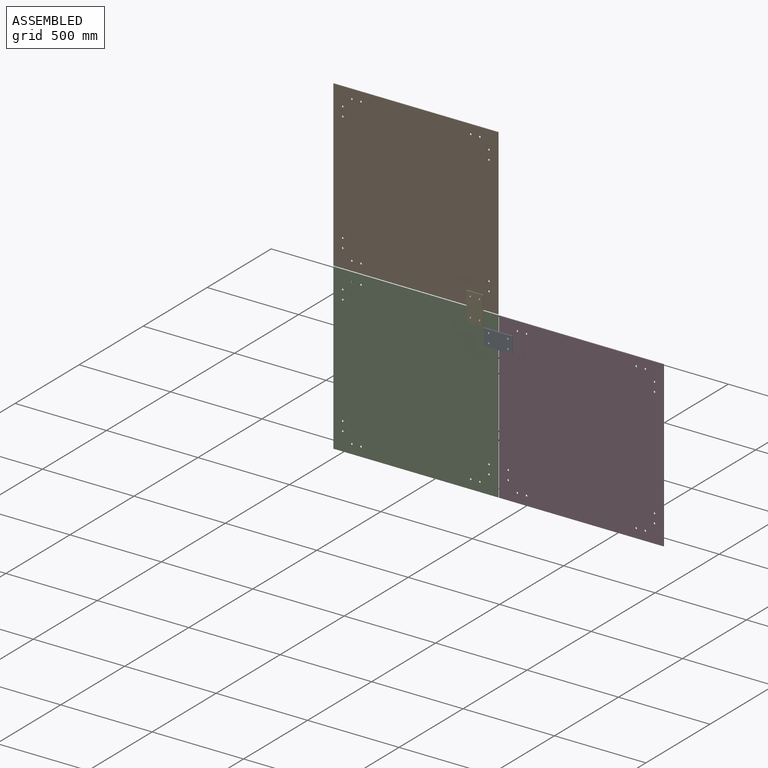
[diagram: assembled view]
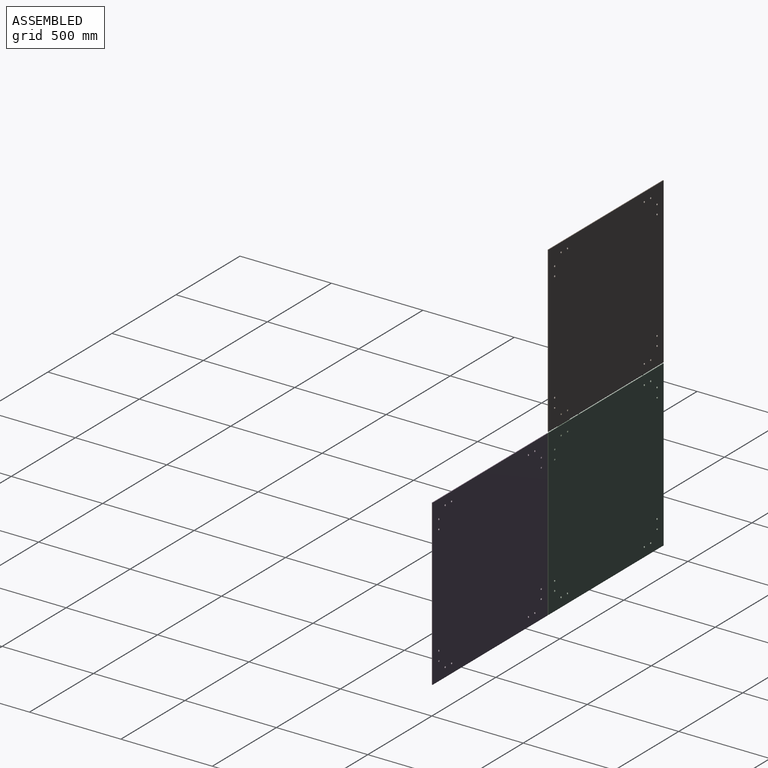
[diagram: assembled view, second angle]
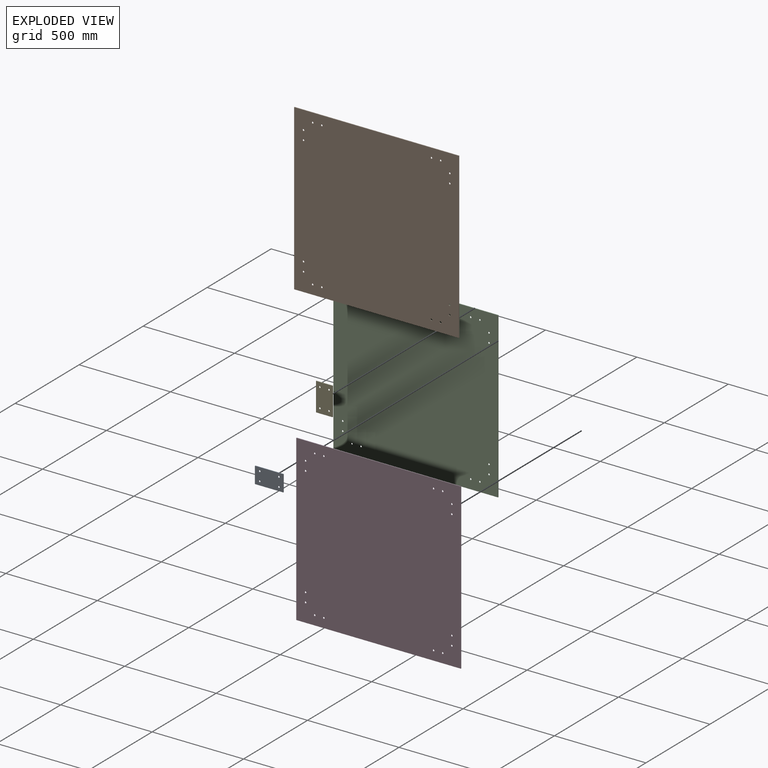
[diagram: exploded view]
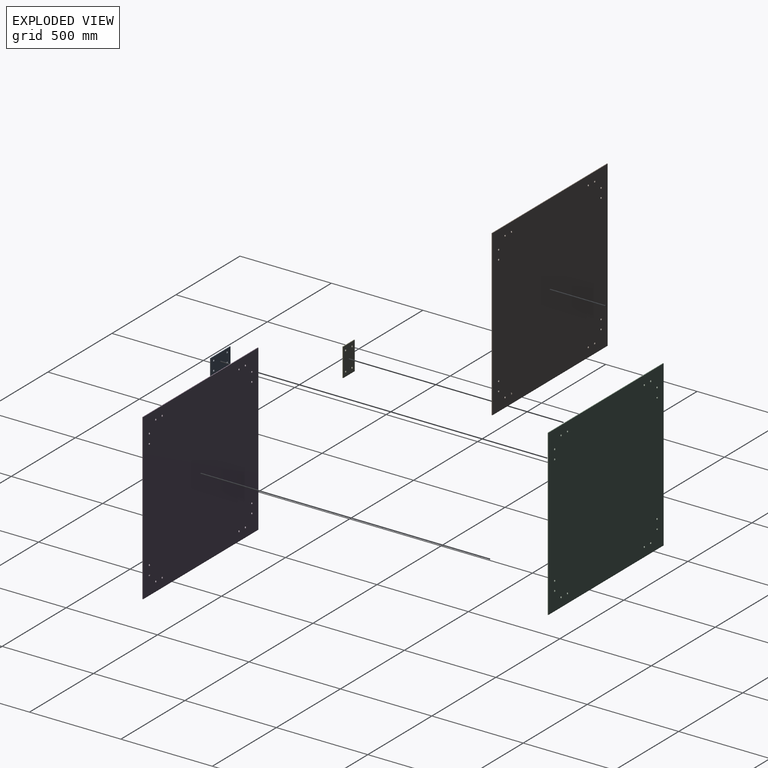
[diagram: exploded view, second angle]
ASSEMBLY  parts=5 mates=8
PART A: 10 faces, bbox 90x4x155 mm
  f0: plane 90x4mm, normal (0,0,-1), area 360mm2, adj f1,f7,f8,f9
  f1: plane 155x4mm, normal (1,0,0), area 620mm2, adj f0,f2,f8,f9
  f2: plane 90x4mm, normal (0,0,1), area 360mm2, adj f1,f7,f8,f9
  f3: cylinder r=5mm len=10mm, axis (0,1,0), area 125.7mm2, adj f8,f9
  f4: cylinder r=5mm len=10mm, axis (0,1,0), area 125.7mm2, adj f8,f9
  f5: cylinder r=5mm len=10mm, axis (0,1,0), area 125.7mm2, adj f8,f9
  f6: cylinder r=5mm len=10mm, axis (0,1,0), area 125.7mm2, adj f8,f9
  f7: plane 155x4mm, normal (-1,0,0), area 620mm2, adj f0,f2,f8,f9
  f8: plane 155x90mm, normal (0,-1,0), area 13635.8mm2, adj f0,f1,f2,f3,f4,f5,f6,f7
  f9: plane 155x90mm, normal (0,1,0), area 13635.8mm2, adj f0,f1,f2,f3,f4,f5,f6,f7
PART B: 22 faces, bbox 900x4x900 mm
  f0: plane 900x4mm, normal (0,0,-1), area 3600mm2, adj f1,f19,f20,f21
  f1: plane 900x4mm, normal (1,0,0), area 3600mm2, adj f0,f2,f20,f21
  f2: plane 900x4mm, normal (0,0,1), area 3600mm2, adj f1,f19,f20,f21
  f3: cylinder r=5mm len=10mm, axis (0,1,0), area 125.7mm2, adj f20,f21
  f4: cylinder r=5mm len=10mm, axis (0,1,0), area 125.7mm2, adj f20,f21
  f5: cylinder r=5mm len=10mm, axis (0,1,0), area 125.7mm2, adj f20,f21
  f6: cylinder r=5mm len=10mm, axis (0,1,0), area 125.7mm2, adj f20,f21
  f7: cylinder r=5mm len=10mm, axis (0,1,0), area 125.7mm2, adj f20,f21
  f8: cylinder r=5mm len=10mm, axis (0,1,0), area 125.7mm2, adj f20,f21
  f9: cylinder r=5mm len=10mm, axis (0,1,0), area 125.7mm2, adj f20,f21
  f10: cylinder r=5mm len=10mm, axis (0,1,0), area 125.7mm2, adj f20,f21
  f11: cylinder r=5mm len=10mm, axis (0,1,0), area 125.7mm2, adj f20,f21
  f12: cylinder r=5mm len=10mm, axis (0,1,0), area 125.7mm2, adj f20,f21
  f13: cylinder r=5mm len=10mm, axis (0,1,0), area 125.7mm2, adj f20,f21
  f14: cylinder r=5mm len=10mm, axis (0,1,0), area 125.7mm2, adj f20,f21
  f15: cylinder r=5mm len=10mm, axis (0,1,0), area 125.7mm2, adj f20,f21
  f16: cylinder r=5mm len=10mm, axis (0,1,0), area 125.7mm2, adj f20,f21
  f17: cylinder r=5mm len=10mm, axis (0,1,0), area 125.7mm2, adj f20,f21
  f18: cylinder r=5mm len=10mm, axis (0,1,0), area 125.7mm2, adj f20,f21
  f19: plane 900x4mm, normal (-1,0,0), area 3600mm2, adj f0,f2,f20,f21
  f20: plane 900x900mm, normal (0,-1,0), area 808743.4mm2, adj f0,f1,f2,f3,f4,f5,f6,f7
  f21: plane 900x900mm, normal (0,1,0), area 808743.4mm2, adj f0,f1,f2,f3,f4,f5,f6,f7
PART C: same geometry as B
PART D: same geometry as B
PART E: same geometry as A
PLACE A rot(axis=(0,-1,0),90deg) t=(1470.65,357.14,175.23)mm
PLACE B t=(1390.65,361.14,260.23)mm
PLACE C rot(axis=(0,1,0),0deg) t=(1390.65,361.14,-644.77)mm
PLACE D t=(2295.65,361.14,-644.77)mm
PLACE E t=(1310.65,357.14,180.23)mm
MATE slider B.f6 <-> E.f3  axis (0,-1,0) through (1240.65,357.14,310.23)mm
MATE planar C.f20 <-> D.f20  axis (0,-1,0) through (940.65,357.14,-194.77)mm
MATE planar A.f9 <-> D.f20  axis (0,1,0) through (1393.15,357.14,130.23)mm
MATE cylindrical C.f7 <-> A.f4  axis (0,-1,0) through (1340.65,357.14,155.23)mm
MATE planar B.f5 <-> E.f9  axis (0,-1,0) through (1290.65,357.14,310.23)mm
MATE cylindrical A.f5 <-> D.f13  axis (0,1,0) through (1445.65,357.14,155.23)mm
MATE planar E.f9 <-> C.f20  axis (0,1,0) through (1265.65,357.14,257.73)mm
MATE cylindrical E.f6 <-> C.f10  axis (0,1,0) through (1240.65,357.14,205.23)mm
